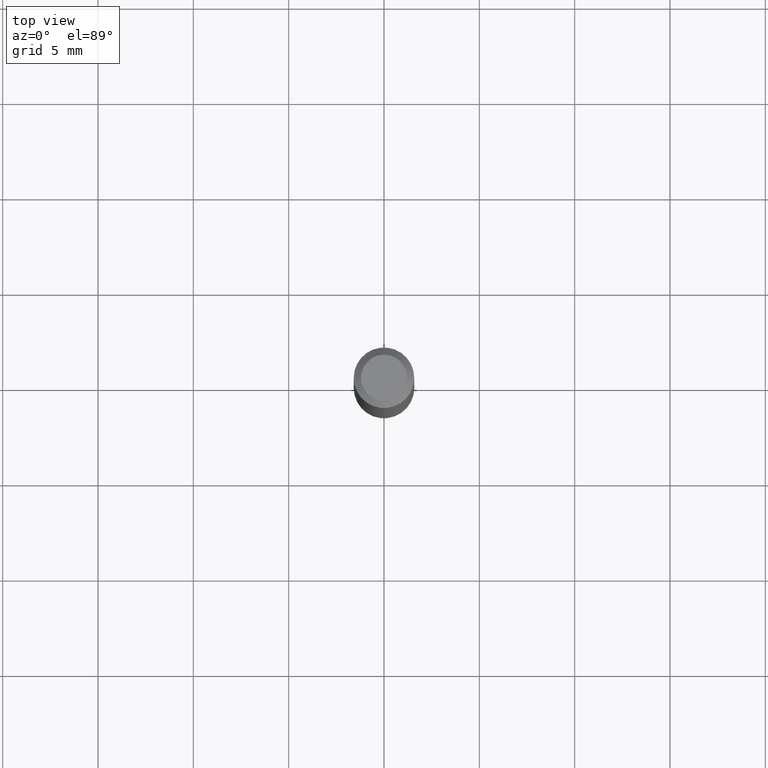
[diagram: clean part render]
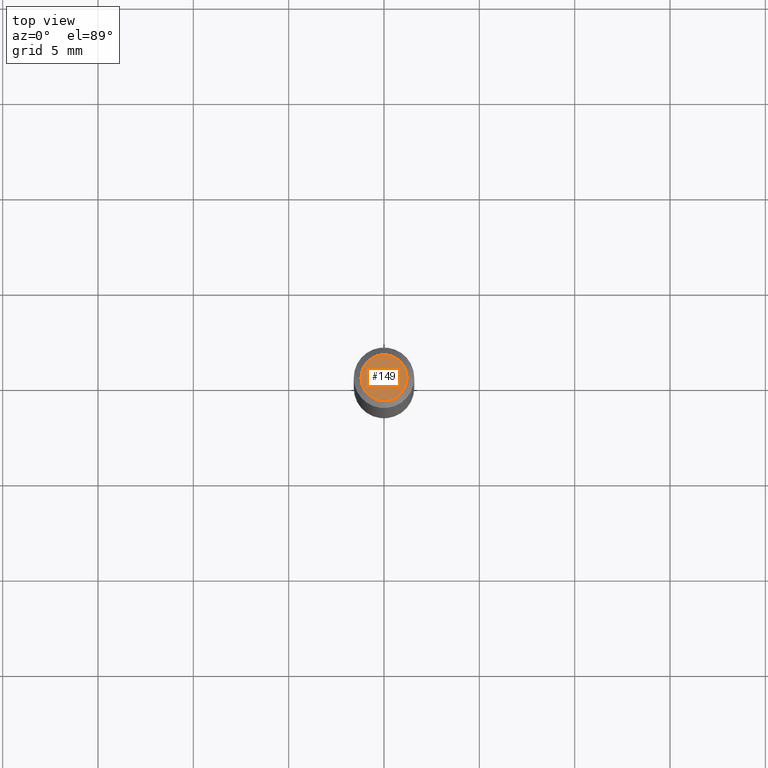
[diagram: same view with one face highlighted and labeled with its STEP entity id]
A machine part, top view. The second image highlights one B-rep face of the part: STEP entity #149.
In plain terms, the highlighted planar face has unit normal (0, -0, -1).
Its self-contained STEP definition (entity closure, byte-faithful):
#29 = DIRECTION ( 'NONE',  ( 1.000000000000000000, -6.982962677686267499E-15, 4.852736867747366768E-29 ) ) ;
#30 = AXIS2_PLACEMENT_3D ( 'NONE', #185, #334, #256 ) ;
#33 = ORIENTED_EDGE ( 'NONE', *, *, #203, .T. ) ;
#42 = CARTESIAN_POINT ( 'NONE',  ( 3.316907271900976096E-16, 0.04749999999999999362, -5.911810482194846144E-16 ) ) ;
#61 = CARTESIAN_POINT ( 'NONE',  ( 0.04749999999999999362, -4.035134999187593414E-16, -8.506713692488677736E-16 ) ) ;
#80 = VERTEX_POINT ( 'NONE', #61 ) ;
#81 = AXIS2_PLACEMENT_3D ( 'NONE', #42, #121, #187 ) ;
#95 = EDGE_CURVE ( 'NONE', #362, #80, #310, .T. ) ;
#113 = CIRCLE ( 'NONE', #30, 0.04749999999999999362 ) ;
#121 = DIRECTION ( 'NONE',  ( 2.438088387897960049E-29, -3.491481338843145188E-15, -1.000000000000000000 ) ) ;
#143 = AXIS2_PLACEMENT_3D ( 'NONE', #178, #390, #29 ) ;
#149 = ADVANCED_FACE ( 'NONE', ( #363 ), #159, .F. ) ;
#159 = PLANE ( 'NONE',  #81 ) ;
#166 = CARTESIAN_POINT ( 'NONE',  ( -0.04749999999999999362, 3.578768372314195715E-16, -8.506713692488727040E-16 ) ) ;
#178 = CARTESIAN_POINT ( 'NONE',  ( 2.080290297812910479E-44, -2.970103211220577886E-30, -8.506713692488703374E-16 ) ) ;
#185 = CARTESIAN_POINT ( 'NONE',  ( 2.080290297812910479E-44, -2.970103211220577886E-30, -8.506713692488703374E-16 ) ) ;
#187 = DIRECTION ( 'NONE',  ( -1.000000000000000000, 6.982962677686265922E-15, -4.876176775795935793E-29 ) ) ;
#203 = EDGE_CURVE ( 'NONE', #80, #362, #113, .T. ) ;
#256 = DIRECTION ( 'NONE',  ( 1.000000000000000000, -6.982962677686267499E-15, 4.852736867747366768E-29 ) ) ;
#307 = ORIENTED_EDGE ( 'NONE', *, *, #95, .T. ) ;
#310 = CIRCLE ( 'NONE', #143, 0.04749999999999999362 ) ;
#329 = EDGE_LOOP ( 'NONE', ( #307, #33 ) ) ;
#334 = DIRECTION ( 'NONE',  ( -2.445468806185136597E-29, 3.491481338843145583E-15, 1.000000000000000000 ) ) ;
#362 = VERTEX_POINT ( 'NONE', #166 ) ;
#363 = FACE_OUTER_BOUND ( 'NONE', #329, .T. ) ;
#390 = DIRECTION ( 'NONE',  ( -2.445468806185136597E-29, 3.491481338843145583E-15, 1.000000000000000000 ) ) ;